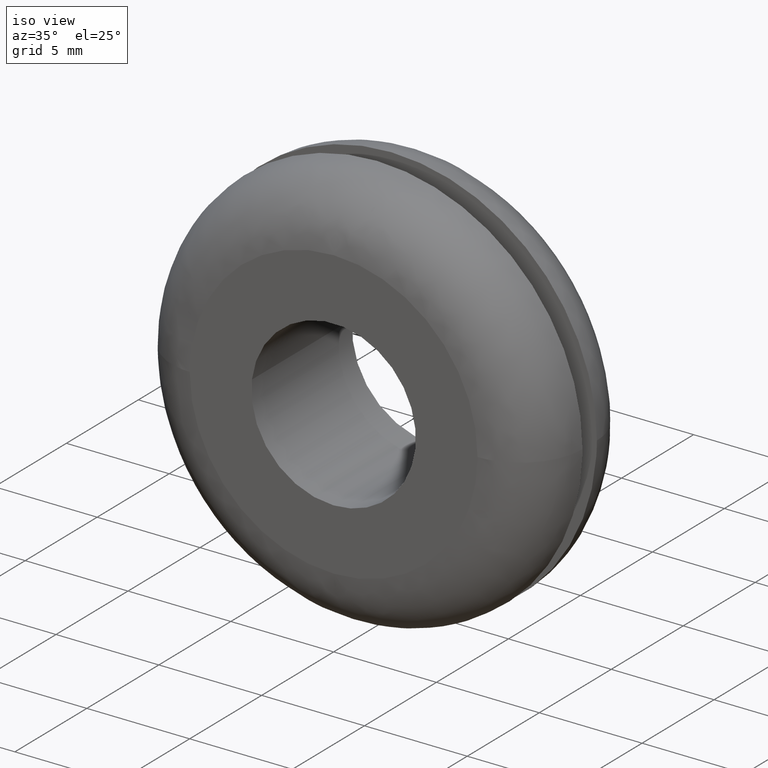
[diagram: clean part render]
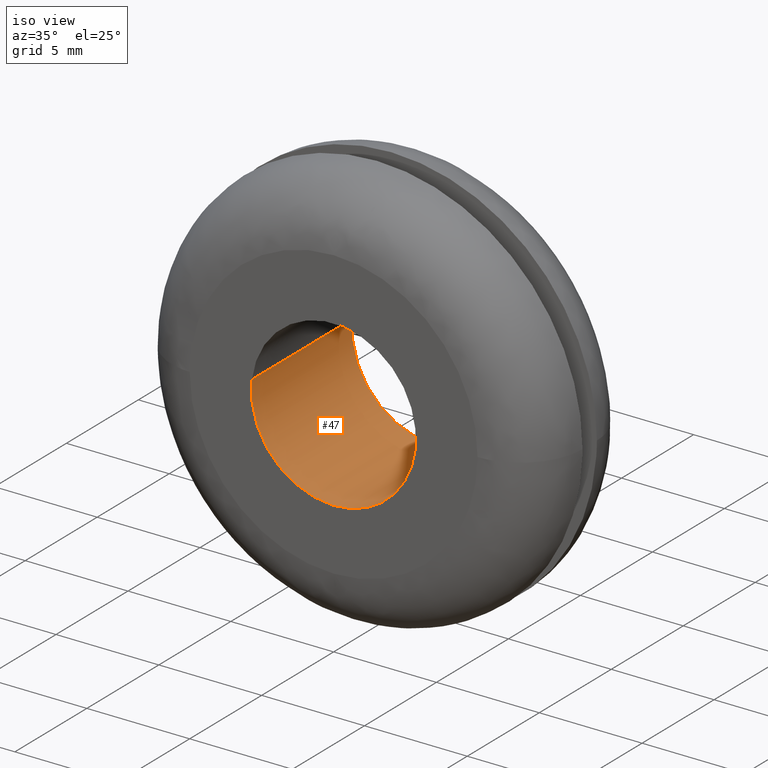
[diagram: same view with one face highlighted and labeled with its STEP entity id]
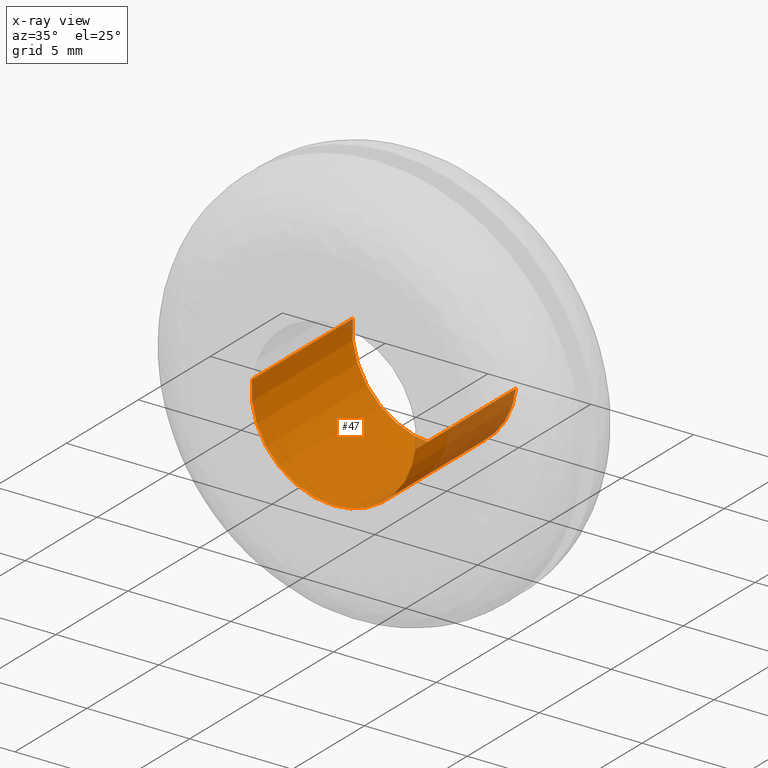
[diagram: x-ray of the same camera — body ghosted, the highlighted face saturated]
A machine part, iso view. The second image highlights one B-rep face of the part: STEP entity #47.
The next image is the same camera in x-ray: the body ghosted, the highlighted face saturated — about 10% of this face is hidden behind the body in this view.
In plain terms, the highlighted cylindrical surface (partial cylindrical patch) has radius 4 mm, axis along (-0, 1, -0).
Its self-contained STEP definition (entity closure, byte-faithful):
#47=ADVANCED_FACE('',(#127),#126,.F.);
#126=CYLINDRICAL_SURFACE('',#218,4.00000000000E+000);
#127=FACE_OUTER_BOUND('',#219,.T.);
#215=CARTESIAN_POINT('',(7.00264927072E-017,7.17500000000E+000,-1.45260831833E-015));
#216=DIRECTION('',(-4.60583929913E-017,1.00000000000E+000,-3.87484386562E-016));
#217=DIRECTION('',(-9.93009526364E-001,-1.47911419729E-031,1.18034234657E-001));
#218=AXIS2_PLACEMENT_3D('',#215,#216,#217);
#219=EDGE_LOOP('',(#368,#369,#370,#371,#372,#373));
#368=ORIENTED_EDGE('',*,*,#412,.F.);
#369=ORIENTED_EDGE('',*,*,#414,.F.);
#370=ORIENTED_EDGE('',*,*,#432,.F.);
#371=ORIENTED_EDGE('',*,*,#427,.T.);
#372=ORIENTED_EDGE('',*,*,#429,.T.);
#373=ORIENTED_EDGE('',*,*,#433,.T.);
#412=EDGE_CURVE('',#522,#523,#524,.T.);
#414=EDGE_CURVE('',#530,#522,#537,.T.);
#427=EDGE_CURVE('',#627,#628,#629,.T.);
#429=EDGE_CURVE('',#628,#635,#642,.T.);
#432=EDGE_CURVE('',#627,#530,#660,.T.);
#433=EDGE_CURVE('',#635,#523,#666,.T.);
#522=VERTEX_POINT('',#756);
#523=VERTEX_POINT('',#757);
#524=CIRCLE('',#761,3.99999999999E+000);
#530=VERTEX_POINT('',#762);
#537=CIRCLE('',#770,3.99999999999E+000);
#627=VERTEX_POINT('',#831);
#628=VERTEX_POINT('',#832);
#629=CIRCLE('',#836,3.99999999999E+000);
#635=VERTEX_POINT('',#837);
#642=CIRCLE('',#845,3.99999999999E+000);
#660=(BOUNDED_CURVE() B_SPLINE_CURVE(1,(#850,#851),.UNSPECIFIED.,.F.,.F.) B_SPLINE_CURVE_WITH_KNOTS((2,2),(8.33333320912E-002,9.16666664070E-001),.UNSPECIFIED.) CURVE() GEOMETRIC_REPRESENTATION_ITEM() RATIONAL_B_SPLINE_CURVE((1.00000000000E+000,1.00000000000E+000)) REPRESENTATION_ITEM('') );
#666=(BOUNDED_CURVE() B_SPLINE_CURVE(1,(#852,#853),.UNSPECIFIED.,.F.,.F.) B_SPLINE_CURVE_WITH_KNOTS((2,2),(8.33333333333E-002,9.16666666667E-001),.UNSPECIFIED.) CURVE() GEOMETRIC_REPRESENTATION_ITEM() RATIONAL_B_SPLINE_CURVE((7.50000000000E-001,7.50000000000E-001)) REPRESENTATION_ITEM('') );
#756=CARTESIAN_POINT('',(6.66133814775E-016,7.00000000000E+000,-3.99999999998E+000));
#757=CARTESIAN_POINT('',(3.97195644362E+000,7.00000000000E+000,-4.72823444808E-001));
#758=CARTESIAN_POINT('',(4.21995771660E-012,7.00000000000E+000,9.28590537796E-012));
#759=DIRECTION('',(-3.85388332588E-016,-1.00000000000E+000,5.20152082582E-016));
#760=DIRECTION('',(-1.05444819543E-012,-5.20152082582E-016,-1.00000000000E+000));
#761=AXIS2_PLACEMENT_3D('',#758,#759,#760);
#762=CARTESIAN_POINT('',(-3.97203827810E+000,7.00000000000E+000,4.72135486074E-001));
#767=CARTESIAN_POINT('',(4.21995771660E-012,7.00000000000E+000,9.28590537796E-012));
#768=DIRECTION('',(-3.85388332588E-016,-1.00000000000E+000,5.20152082582E-016));
#769=DIRECTION('',(-1.05444819543E-012,-5.20152082582E-016,-1.00000000000E+000));
#770=AXIS2_PLACEMENT_3D('',#767,#768,#769);
#831=CARTESIAN_POINT('',(-3.97203827810E+000,-9.65354450602E-016,4.72135486074E-001));
#832=CARTESIAN_POINT('',(-2.05391259556E-015,-2.83452986215E-015,-3.99999999998E+000));
#833=CARTESIAN_POINT('',(4.11959355517E-012,-9.07720911599E-016,9.06452690685E-012));
#834=DIRECTION('',(7.17672487400E-017,-1.00000000000E+000,4.81702237639E-016));
#835=DIRECTION('',(-1.03005104446E-012,-4.81702237639E-016,-1.00000000000E+000));
#836=AXIS2_PLACEMENT_3D('',#833,#834,#835);
#837=CARTESIAN_POINT('',(3.97195644362E+000,-8.50424636902E-016,-4.72823444808E-001));
#842=CARTESIAN_POINT('',(4.11959355517E-012,-9.07720911599E-016,9.06452690685E-012));
#843=DIRECTION('',(7.17672487400E-017,-1.00000000000E+000,4.81702237639E-016));
#844=DIRECTION('',(-1.03005104446E-012,-4.81702237639E-016,-1.00000000000E+000));
#845=AXIS2_PLACEMENT_3D('',#842,#843,#844);
#850=CARTESIAN_POINT('',(-3.97203810545E+000,-1.04336150830E-008,4.72136938627E-001));
#851=CARTESIAN_POINT('',(-3.97203810545E+000,6.99999997819E+000,4.72136938627E-001));
#852=CARTESIAN_POINT('',(3.97203810545E+000,-1.11022302463E-015,-4.72136938627E-001));
#853=CARTESIAN_POINT('',(3.97203810545E+000,7.00000000000E+000,-4.72136938627E-001));